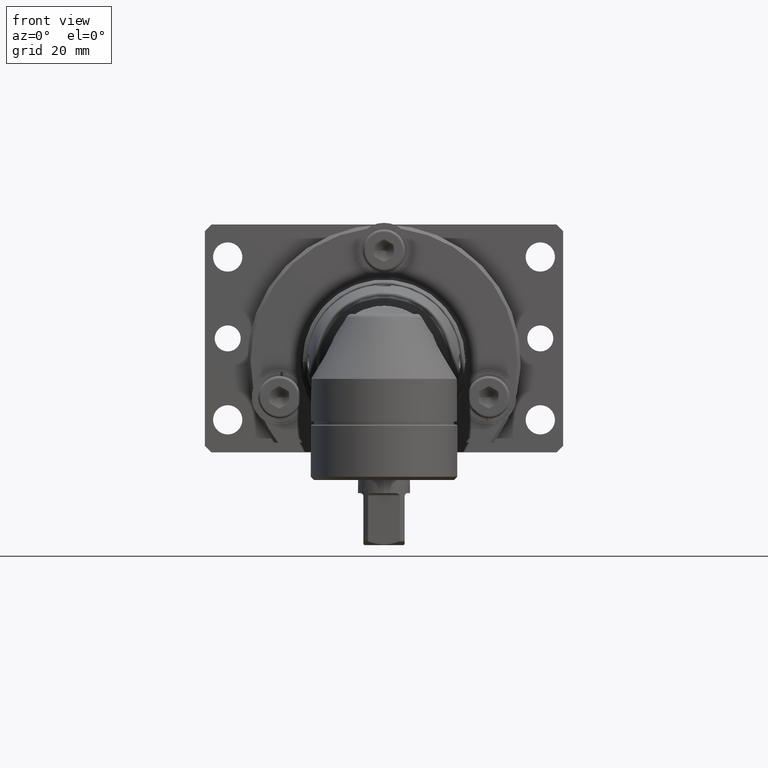
[diagram: clean part render]
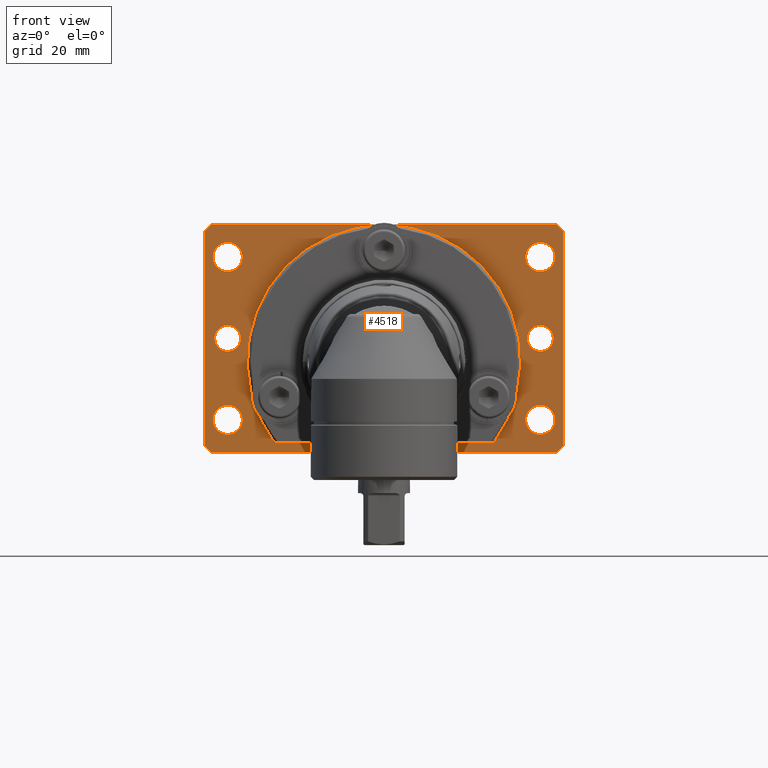
[diagram: same view with one face highlighted and labeled with its STEP entity id]
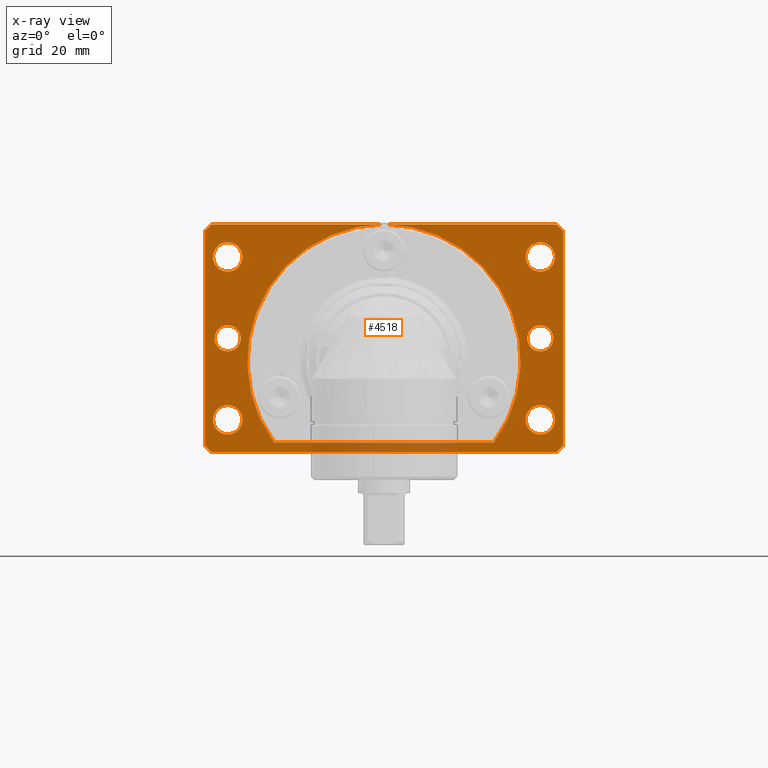
[diagram: x-ray of the same camera — body ghosted, the highlighted face saturated]
A machine part, front view. The second image highlights one B-rep face of the part: STEP entity #4518.
The next image is the same camera in x-ray: the body ghosted, the highlighted face saturated — about 5% of this face is hidden behind the body in this view.
In plain terms, the highlighted planar face has unit normal (0, -1, 0).
Its self-contained STEP definition (entity closure, byte-faithful):
#234=LINE('',#8295,#447);
#272=LINE('',#8596,#485);
#276=LINE('',#8605,#489);
#294=LINE('',#8730,#507);
#297=LINE('',#8736,#510);
#301=LINE('',#8744,#514);
#303=LINE('',#8747,#516);
#307=LINE('',#8754,#520);
#308=LINE('',#8755,#521);
#309=LINE('',#8757,#522);
#447=VECTOR('',#5788,10.);
#485=VECTOR('',#6064,10.);
#489=VECTOR('',#6070,10.);
#507=VECTOR('',#6220,10.);
#510=VECTOR('',#6225,10.);
#514=VECTOR('',#6231,10.);
#516=VECTOR('',#6235,10.);
#520=VECTOR('',#6241,10.);
#521=VECTOR('',#6242,10.);
#522=VECTOR('',#6245,10.);
#723=FACE_BOUND('',#1195,.T.);
#724=FACE_BOUND('',#1196,.T.);
#725=FACE_BOUND('',#1197,.T.);
#726=FACE_BOUND('',#1198,.T.);
#727=FACE_BOUND('',#1199,.T.);
#728=FACE_BOUND('',#1200,.T.);
#902=FACE_OUTER_BOUND('',#1194,.T.);
#1194=EDGE_LOOP('',(#3731,#3732,#3733,#3734,#3735,#3736,#3737,#3738,#3739,
#3740,#3741,#3742));
#1195=EDGE_LOOP('',(#3743));
#1196=EDGE_LOOP('',(#3744));
#1197=EDGE_LOOP('',(#3745));
#1198=EDGE_LOOP('',(#3746));
#1199=EDGE_LOOP('',(#3747));
#1200=EDGE_LOOP('',(#3748));
#1425=CIRCLE('',#4829,42.);
#1426=CIRCLE('',#4830,42.);
#1532=CIRCLE('',#4989,4.5);
#1535=CIRCLE('',#4993,4.5);
#1538=CIRCLE('',#4997,4.5);
#1541=CIRCLE('',#5001,4.5);
#1553=CIRCLE('',#5017,4.);
#1556=CIRCLE('',#5021,4.);
#1846=VERTEX_POINT('',#8214);
#1849=VERTEX_POINT('',#8219);
#1850=VERTEX_POINT('',#8221);
#1959=VERTEX_POINT('',#8592);
#1961=VERTEX_POINT('',#8595);
#1963=VERTEX_POINT('',#8601);
#1965=VERTEX_POINT('',#8604);
#1969=VERTEX_POINT('',#8614);
#1972=VERTEX_POINT('',#8622);
#1975=VERTEX_POINT('',#8630);
#1978=VERTEX_POINT('',#8638);
#1990=VERTEX_POINT('',#8670);
#1993=VERTEX_POINT('',#8678);
#2006=VERTEX_POINT('',#8729);
#2008=VERTEX_POINT('',#8735);
#2010=VERTEX_POINT('',#8741);
#2013=VERTEX_POINT('',#8751);
#2386=EDGE_CURVE('',#1850,#1849,#1425,.T.);
#2387=EDGE_CURVE('',#1846,#1850,#1426,.T.);
#2421=EDGE_CURVE('',#1849,#1846,#234,.T.);
#2545=EDGE_CURVE('',#1961,#1959,#272,.T.);
#2549=EDGE_CURVE('',#1965,#1963,#276,.T.);
#2555=EDGE_CURVE('',#1969,#1969,#1532,.T.);
#2559=EDGE_CURVE('',#1972,#1972,#1535,.T.);
#2563=EDGE_CURVE('',#1975,#1975,#1538,.T.);
#2567=EDGE_CURVE('',#1978,#1978,#1541,.T.);
#2583=EDGE_CURVE('',#1990,#1990,#1553,.T.);
#2587=EDGE_CURVE('',#1993,#1993,#1556,.T.);
#2614=EDGE_CURVE('',#1961,#2006,#294,.T.);
#2617=EDGE_CURVE('',#2008,#1959,#297,.T.);
#2621=EDGE_CURVE('',#2008,#2010,#301,.T.);
#2623=EDGE_CURVE('',#1965,#2010,#303,.T.);
#2627=EDGE_CURVE('',#1850,#2006,#307,.T.);
#2628=EDGE_CURVE('',#2013,#1850,#308,.T.);
#2629=EDGE_CURVE('',#2013,#1963,#309,.T.);
#3731=ORIENTED_EDGE('',*,*,#2629,.F.);
#3732=ORIENTED_EDGE('',*,*,#2628,.T.);
#3733=ORIENTED_EDGE('',*,*,#2386,.T.);
#3734=ORIENTED_EDGE('',*,*,#2421,.T.);
#3735=ORIENTED_EDGE('',*,*,#2387,.T.);
#3736=ORIENTED_EDGE('',*,*,#2627,.T.);
#3737=ORIENTED_EDGE('',*,*,#2614,.F.);
#3738=ORIENTED_EDGE('',*,*,#2545,.T.);
#3739=ORIENTED_EDGE('',*,*,#2617,.F.);
#3740=ORIENTED_EDGE('',*,*,#2621,.T.);
#3741=ORIENTED_EDGE('',*,*,#2623,.F.);
#3742=ORIENTED_EDGE('',*,*,#2549,.T.);
#3743=ORIENTED_EDGE('',*,*,#2587,.T.);
#3744=ORIENTED_EDGE('',*,*,#2583,.T.);
#3745=ORIENTED_EDGE('',*,*,#2567,.T.);
#3746=ORIENTED_EDGE('',*,*,#2563,.T.);
#3747=ORIENTED_EDGE('',*,*,#2559,.T.);
#3748=ORIENTED_EDGE('',*,*,#2555,.T.);
#4293=PLANE('',#5061);
#4518=ADVANCED_FACE('',(#902,#723,#724,#725,#726,#727,#728),#4293,.T.);
#4829=AXIS2_PLACEMENT_3D('',#8222,#5710,#5711);
#4830=AXIS2_PLACEMENT_3D('',#8223,#5712,#5713);
#4989=AXIS2_PLACEMENT_3D('',#8616,#6080,#6081);
#4993=AXIS2_PLACEMENT_3D('',#8624,#6089,#6090);
#4997=AXIS2_PLACEMENT_3D('',#8632,#6098,#6099);
#5001=AXIS2_PLACEMENT_3D('',#8640,#6107,#6108);
#5017=AXIS2_PLACEMENT_3D('',#8672,#6143,#6144);
#5021=AXIS2_PLACEMENT_3D('',#8680,#6152,#6153);
#5061=AXIS2_PLACEMENT_3D('',#8766,#6256,#6257);
#5710=DIRECTION('center_axis',(-3.53651794369473E-16,1.,-1.06971554646458E-15));
#5711=DIRECTION('ref_axis',(1.73472347597682E-16,-1.06971554646458E-15,
-1.));
#5712=DIRECTION('center_axis',(-3.53651794369473E-16,1.,-1.06971554646458E-15));
#5713=DIRECTION('ref_axis',(1.73472347597682E-16,-1.06971554646458E-15,
-1.));
#5788=DIRECTION('',(-1.,-3.53651794369473E-16,-4.18867494143088E-17));
#6064=DIRECTION('',(-1.79103878613905E-16,-1.06971554646458E-15,-1.));
#6070=DIRECTION('',(1.79103878613905E-16,1.06971554646458E-15,1.));
#6080=DIRECTION('center_axis',(-4.73983281220064E-16,1.,-1.06971554646458E-15));
#6081=DIRECTION('ref_axis',(-5.22212472281724E-17,-1.06971554646458E-15,
-1.));
#6089=DIRECTION('center_axis',(-4.73983281220064E-16,1.,-1.06971554646458E-15));
#6090=DIRECTION('ref_axis',(-5.22212472281724E-17,-1.06971554646458E-15,
-1.));
#6098=DIRECTION('center_axis',(-4.73983281220064E-16,1.,-1.06971554646458E-15));
#6099=DIRECTION('ref_axis',(-5.22212472281724E-17,-1.06971554646458E-15,
-1.));
#6107=DIRECTION('center_axis',(-4.73983281220064E-16,1.,-1.06971554646458E-15));
#6108=DIRECTION('ref_axis',(-5.22212472281724E-17,-1.06971554646458E-15,
-1.));
#6143=DIRECTION('center_axis',(-4.73983281220064E-16,1.,-1.06971554646458E-15));
#6144=DIRECTION('ref_axis',(-5.22212472281724E-17,-1.06971554646458E-15,
-1.));
#6152=DIRECTION('center_axis',(-4.73983281220064E-16,1.,-1.06971554646458E-15));
#6153=DIRECTION('ref_axis',(-5.22212472281724E-17,-1.06971554646458E-15,
-1.));
#6220=DIRECTION('',(0.707106781186546,1.09155990916554E-15,0.707106781186549));
#6225=DIRECTION('',(-0.70710678118655,4.21246324526018E-16,0.707106781186545));
#6231=DIRECTION('',(1.,4.73983281220064E-16,-1.7333648627819E-16));
#6235=DIRECTION('',(-0.707106781186548,-1.09155990916554E-15,-0.707106781186548));
#6241=DIRECTION('',(-1.,-4.73983281220064E-16,2.13708232628196E-16));
#6242=DIRECTION('',(-1.,-4.73983281220064E-16,2.13708232628196E-16));
#6245=DIRECTION('',(0.707106781186549,-4.21246324526019E-16,-0.707106781186546));
#6256=DIRECTION('center_axis',(4.73983281220064E-16,-1.,1.06971554646458E-15));
#6257=DIRECTION('ref_axis',(5.22212472281724E-17,1.06971554646458E-15,1.));
#8214=CARTESIAN_POINT('',(-33.7490740613724,134.499999999999,-25.0000000000002));
#8219=CARTESIAN_POINT('',(33.7490740613724,134.499999999999,-25.0000000000002));
#8221=CARTESIAN_POINT('',(-7.23510886683371E-15,134.5,41.9999999999998));
#8222=CARTESIAN_POINT('Origin',(-1.6116893063835E-14,134.499999999999,-2.12185415577469E-13));
#8223=CARTESIAN_POINT('Origin',(-1.6116893063835E-14,134.499999999999,-2.12185415577469E-13));
#8295=CARTESIAN_POINT('',(16.8745370306862,134.499999999999,-25.0000000000002));
#8592=CARTESIAN_POINT('',(-55.,134.499999999999,-26.0000000000002));
#8595=CARTESIAN_POINT('',(-55.,134.5,39.9999999999998));
#8596=CARTESIAN_POINT('',(-55.,134.5,41.9999999999998));
#8601=CARTESIAN_POINT('',(55.,134.5,39.9999999999998));
#8604=CARTESIAN_POINT('',(55.,134.499999999999,-26.0000000000002));
#8605=CARTESIAN_POINT('',(55.,134.499999999999,-28.0000000000002));
#8614=CARTESIAN_POINT('',(48.,134.5,36.4999999999998));
#8616=CARTESIAN_POINT('Origin',(48.,134.5,31.9999999999998));
#8622=CARTESIAN_POINT('',(-48.,134.5,36.4999999999998));
#8624=CARTESIAN_POINT('Origin',(-48.,134.5,31.9999999999998));
#8630=CARTESIAN_POINT('',(48.,134.5,-13.5000000000002));
#8632=CARTESIAN_POINT('Origin',(48.,134.5,-18.0000000000002));
#8638=CARTESIAN_POINT('',(-48.,134.499999999999,-13.5000000000002));
#8640=CARTESIAN_POINT('Origin',(-48.,134.499999999999,-18.0000000000002));
#8670=CARTESIAN_POINT('',(-48.,134.499999999999,10.9999999999998));
#8672=CARTESIAN_POINT('Origin',(-48.,134.499999999999,6.9999999999998));
#8678=CARTESIAN_POINT('',(48.,134.5,10.9999999999998));
#8680=CARTESIAN_POINT('Origin',(48.,134.5,6.99999999999978));
#8729=CARTESIAN_POINT('',(-53.,134.5,41.9999999999998));
#8730=CARTESIAN_POINT('',(-49.0000000000001,134.5,45.9999999999998));
#8735=CARTESIAN_POINT('',(-53.,134.499999999999,-28.0000000000002));
#8736=CARTESIAN_POINT('',(-48.9999999999999,134.499999999999,-32.0000000000003));
#8741=CARTESIAN_POINT('',(53.,134.499999999999,-28.0000000000002));
#8744=CARTESIAN_POINT('',(-55.,134.499999999999,-28.0000000000002));
#8747=CARTESIAN_POINT('',(49.,134.499999999999,-32.0000000000002));
#8751=CARTESIAN_POINT('',(53.,134.5,41.9999999999998));
#8754=CARTESIAN_POINT('',(55.,134.5,41.9999999999998));
#8755=CARTESIAN_POINT('',(55.,134.5,41.9999999999998));
#8757=CARTESIAN_POINT('',(48.9999999999999,134.5,45.9999999999998));
#8766=CARTESIAN_POINT('Origin',(-1.51109810610373E-14,134.5,6.99999999999979));